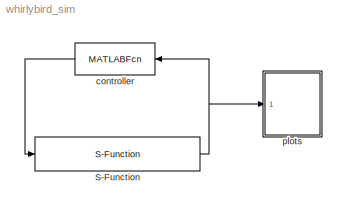
MODEL whirlybird_sim
KIND model
BLOCK [S-Function] S-Function
  EnableBusSupport = off
  FunctionName = whirlybird_dynamics
  Parameters = P
  Ports = [1, 1]
  SID = 4
BLOCK [MATLABFcn] controller
  MATLABFcn = controller_whirlybird_lab2(u,P)
  OutputDimensions = 2
  Ports = [1, 1]
  SID = 14
  SampleTime = P.Ts
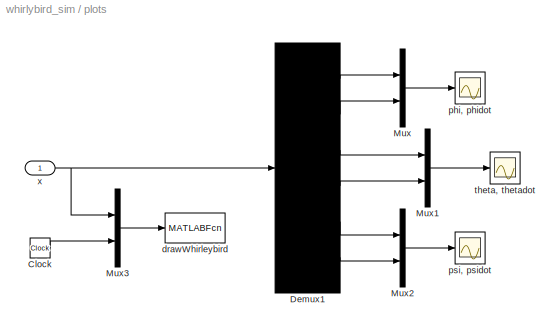
BLOCK [SubSystem] plots
  Ports = [1]
  RequestExecContextInheritance = off
  SID = 15
BLOCK [Clock] plots/Clock
  Decimation = 1
  SID = 17
BLOCK [Demux] plots/Demux1
  DisplayOption = bar
  Outputs = 6
  Ports = [1, 6]
  SID = 33
BLOCK [Mux] plots/Mux
  DisplayOption = bar
  Inputs = 2
  Ports = [2, 1]
  SID = 21
BLOCK [Mux] plots/Mux1
  DisplayOption = bar
  Inputs = 2
  Ports = [2, 1]
  SID = 34
BLOCK [Mux] plots/Mux2
  DisplayOption = bar
  Inputs = 2
  Ports = [2, 1]
  SID = 35
BLOCK [Mux] plots/Mux3
  DisplayOption = bar
  Inputs = 2
  Ports = [2, 1]
  SID = 37
BLOCK [MATLABFcn] plots/drawWhirleybird
  MATLABFcn = drawWhirleybird(u, P)
  OutputDimensions = 0
  Ports = [1]
  SID = 22
  SampleTime = 0.1
BLOCK [Scope] plots/phi, phidot
  DataFormat = StructureWithTime
  Floating = off
  NumInputPorts = 1
  Ports = [1]
  SID = 1
  SampleTime = 0
  SaveName = ScopeData4
  ShowLegends = off
  TimeRange = 40
  YMax = 15
  YMin = -10
  ZoomMode = xonly
BLOCK [Scope] plots/psi, psidot
  DataFormat = StructureWithTime
  Floating = off
  NumInputPorts = 1
  Ports = [1]
  SID = 24
  SampleTime = 0
  SaveName = ScopeData3
  ShowLegends = off
  TimeRange = 40
  YMax = 1
  YMin = -2
BLOCK [Scope] plots/theta, thetadot
  DataFormat = StructureWithTime
  Floating = off
  NumInputPorts = 1
  Ports = [1]
  SID = 23
  SampleTime = 0
  SaveName = ScopeData2
  ShowLegends = off
  TimeRange = 40
  YMax = 1
  YMin = -2
BLOCK [Inport] plots/x
  IconDisplay = Port number
  SID = 36
NET S-Function:1 -> controller:1, plots:1
LINE controller:1 -> S-Function:1
LINE plots/Clock:1 -> plots/Mux3:2
LINE plots/Demux1:1 -> plots/Mux:1
LINE plots/Demux1:2 -> plots/Mux:2
LINE plots/Demux1:3 -> plots/Mux1:1
LINE plots/Demux1:4 -> plots/Mux1:2
LINE plots/Demux1:5 -> plots/Mux2:1
LINE plots/Demux1:6 -> plots/Mux2:2
LINE plots/Mux1:1 -> plots/theta, thetadot:1
LINE plots/Mux2:1 -> plots/psi, psidot:1
LINE plots/Mux3:1 -> plots/drawWhirleybird:1
LINE plots/Mux:1 -> plots/phi, phidot:1
NET plots/x:1 -> plots/Demux1:1, plots/Mux3:1
note: NET lines group one-source signal fan-out (src -> all destinations, sorted); 1:1 wires keep LINE
